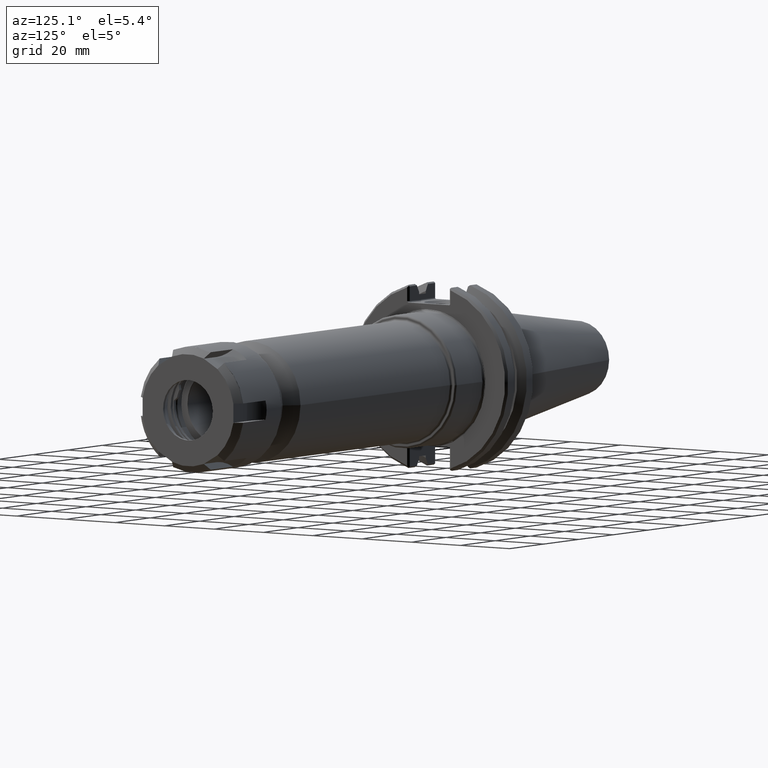
[diagram: clean part render]
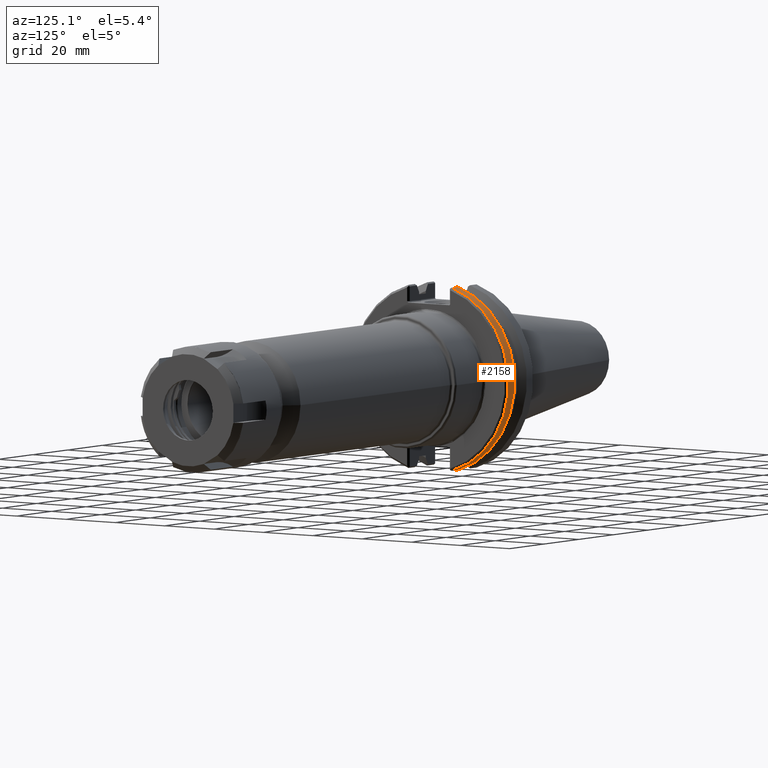
[diagram: same view with one face highlighted and labeled with its STEP entity id]
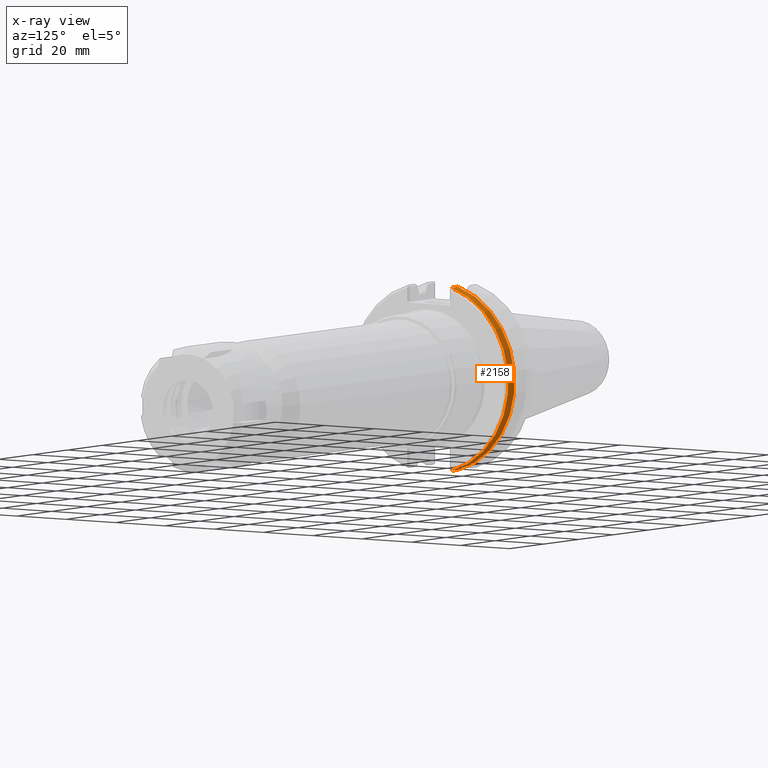
[diagram: x-ray of the same camera — body ghosted, the highlighted face saturated]
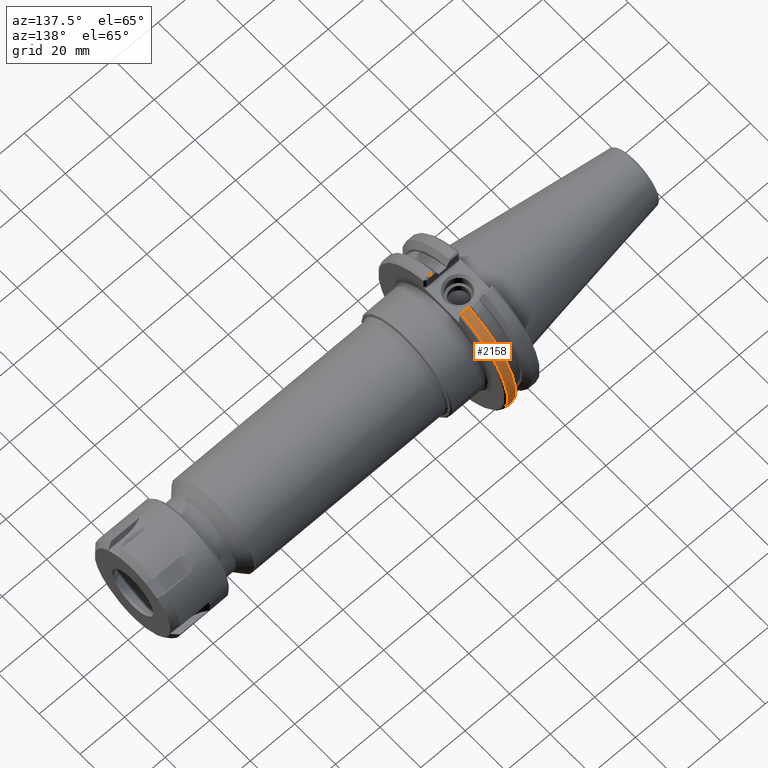
[diagram: same view with one face highlighted and labeled with its STEP entity id]
A machine part, auxiliary view. The second image highlights one B-rep face of the part: STEP entity #2158.
The next image is the same camera in x-ray: the body ghosted, the highlighted face saturated — about 0% of this face is hidden behind the body in this view.
A second angle (auxiliary view) of the same face is appended — the face is thin or edge-on in the first view.
In plain terms, the highlighted cylindrical surface (partial cylindrical patch) has radius 31.75 mm, axis along (1, 0, 0).
Its self-contained STEP definition (entity closure, byte-faithful):
#1980=CARTESIAN_POINT('',(0.719999999999797,0.344098106798386,-1.201705659842612));
#1981=VERTEX_POINT('',#1980);
#1995=CARTESIAN_POINT('',(0.719999999999797,0.344098106798413,1.201705659842604));
#1996=VERTEX_POINT('',#1995);
#1997=CARTESIAN_POINT('',(0.719999999999797,0.0,0.0));
#1998=DIRECTION('',(1.0,1.624514E-013,0.0));
#1999=DIRECTION('',(-1.624514E-013,1.0,0.0));
#2000=AXIS2_PLACEMENT_3D('',#1997,#1998,#1999);
#2001=CIRCLE('',#2000,1.25);
#2002=EDGE_CURVE('',#1981,#1996,#2001,.T.);
#2029=CARTESIAN_POINT('',(0.577173872226652,0.344098106798386,-1.201705659842612));
#2030=VERTEX_POINT('',#2029);
#2044=CARTESIAN_POINT('',(0.577173872226652,0.344098106798386,-1.201705659842612));
#2045=DIRECTION('',(1.0,0.0,0.0));
#2046=VECTOR('',#2045,0.142826127773145);
#2047=LINE('',#2044,#2046);
#2048=EDGE_CURVE('',#2030,#1981,#2047,.T.);
#2134=CARTESIAN_POINT('',(0.4375,0.0,0.0));
#2135=DIRECTION('',(1.0,0.0,0.0));
#2136=DIRECTION('',(-1.624514E-013,1.0,0.0));
#2137=AXIS2_PLACEMENT_3D('',#2134,#2135,#2136);
#2138=CYLINDRICAL_SURFACE('',#2137,1.25);
#2139=ORIENTED_EDGE('',*,*,#2048,.F.);
#2140=CARTESIAN_POINT('',(0.577173872226652,0.344098106798413,1.201705659842604));
#2141=VERTEX_POINT('',#2140);
#2142=CARTESIAN_POINT('',(0.577173872226652,0.0,0.0));
#2143=DIRECTION('',(1.0,1.624514E-013,0.0));
#2144=DIRECTION('',(-1.624514E-013,1.0,0.0));
#2145=AXIS2_PLACEMENT_3D('',#2142,#2143,#2144);
#2146=CIRCLE('',#2145,1.25);
#2147=EDGE_CURVE('',#2030,#2141,#2146,.T.);
#2148=ORIENTED_EDGE('',*,*,#2147,.T.);
#2149=CARTESIAN_POINT('',(0.719999999999797,0.344098106798413,1.201705659842604));
#2150=DIRECTION('',(-1.0,0.0,0.0));
#2151=VECTOR('',#2150,0.142826127773145);
#2152=LINE('',#2149,#2151);
#2153=EDGE_CURVE('',#1996,#2141,#2152,.T.);
#2154=ORIENTED_EDGE('',*,*,#2153,.F.);
#2155=ORIENTED_EDGE('',*,*,#2002,.F.);
#2156=EDGE_LOOP('',(#2139,#2148,#2154,#2155));
#2157=FACE_OUTER_BOUND('',#2156,.T.);
#2158=ADVANCED_FACE('',(#2157),#2138,.T.);